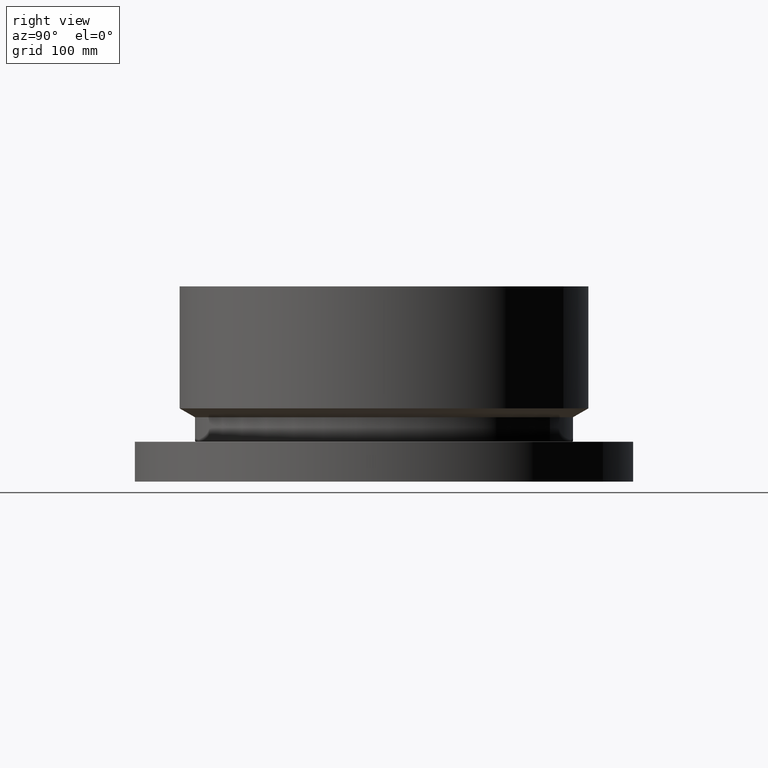
[diagram: clean part render]
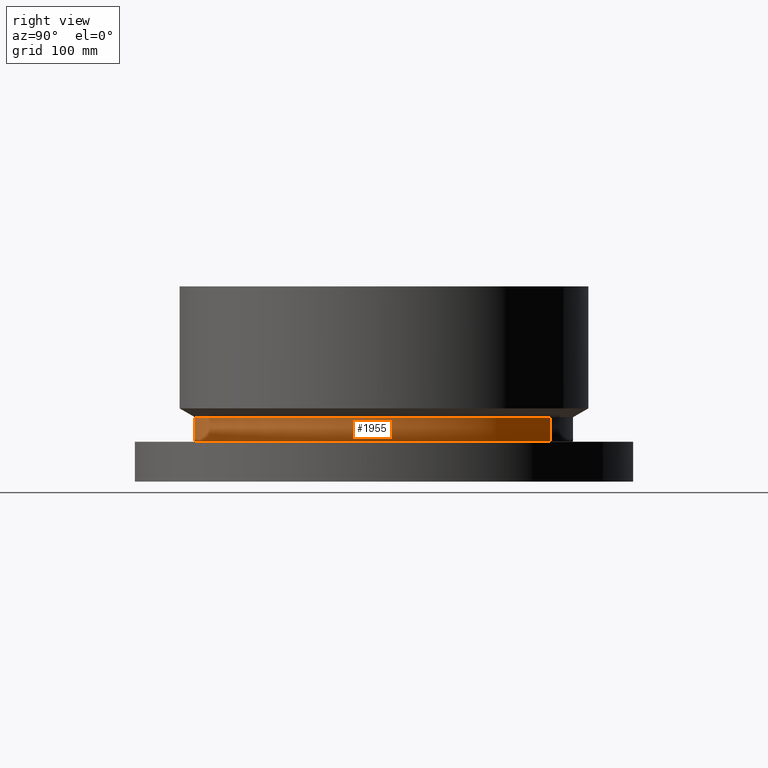
[diagram: same view with one face highlighted and labeled with its STEP entity id]
A machine part, right view. The second image highlights one B-rep face of the part: STEP entity #1955.
In plain terms, the highlighted cylindrical surface (partial cylindrical patch) has radius 293.624 mm, axis along (0, 0, -1).
Its self-contained STEP definition (entity closure, byte-faithful):
#1717=AXIS2_PLACEMENT_3D('Circle Axis2P3D',#1715,#1716,$) ;
#1928=AXIS2_PLACEMENT_3D('Cylinder Axis2P3D',#1925,#1926,#1927) ;
#1939=AXIS2_PLACEMENT_3D('Circle Axis2P3D',#1937,#1938,$) ;
#1712=CARTESIAN_POINT('Vertex',(5.54215922629,10.1448544155,2.47848076212)) ;
#1715=CARTESIAN_POINT('Axis2P3D Location',(0.,0.,2.47848076212)) ;
#1719=CARTESIAN_POINT('Vertex',(-5.54215922629,-10.1448544155,2.47848076212)) ;
#1925=CARTESIAN_POINT('Axis2P3D Location',(0.,0.,5.93750000002)) ;
#1930=CARTESIAN_POINT('Line Origine',(5.54215922629,10.1448544155,3.20799038107)) ;
#1934=CARTESIAN_POINT('Vertex',(5.54215922629,10.1448544155,3.93750000002)) ;
#1937=CARTESIAN_POINT('Axis2P3D Location',(0.,0.,3.93750000002)) ;
#1941=CARTESIAN_POINT('Vertex',(-5.54215922629,-10.1448544155,3.93750000002)) ;
#1944=CARTESIAN_POINT('Line Origine',(-5.54215922629,-10.1448544155,3.20799038107)) ;
#1716=DIRECTION('Axis2P3D Direction',(-0.,0.,0.0393700787402)) ;
#1926=DIRECTION('Axis2P3D Direction',(0.,0.,-0.0393700787402)) ;
#1927=DIRECTION('Axis2P3D XDirection',(-0.0188750212049,-0.0345504945626,0.)) ;
#1931=DIRECTION('Vector Direction',(0.,0.,-0.0393700787402)) ;
#1938=DIRECTION('Axis2P3D Direction',(0.,0.,-0.0393700787402)) ;
#1945=DIRECTION('Vector Direction',(0.,0.,-0.0393700787402)) ;
#1932=VECTOR('Line Direction',#1931,0.0393700787402) ;
#1946=VECTOR('Line Direction',#1945,0.0393700787402) ;
#1950=ORIENTED_EDGE('',*,*,#1721,.F.) ;
#1951=ORIENTED_EDGE('',*,*,#1936,.T.) ;
#1952=ORIENTED_EDGE('',*,*,#1943,.T.) ;
#1953=ORIENTED_EDGE('',*,*,#1948,.F.) ;
#1955=ADVANCED_FACE('PartBody',(#1954),#1929,.T.) ;
#1718=CIRCLE('generated circle',#1717,11.56) ;
#1940=CIRCLE('generated circle',#1939,11.56) ;
#1929=CYLINDRICAL_SURFACE('generated cylinder',#1928,11.56) ;
#1721=EDGE_CURVE('',#1713,#1720,#1718,.F.) ;
#1936=EDGE_CURVE('',#1713,#1935,#1933,.F.) ;
#1943=EDGE_CURVE('',#1935,#1942,#1940,.T.) ;
#1948=EDGE_CURVE('',#1720,#1942,#1947,.F.) ;
#1949=EDGE_LOOP('',(#1950,#1951,#1952,#1953)) ;
#1954=FACE_OUTER_BOUND('',#1949,.T.) ;
#1933=LINE('Line',#1930,#1932) ;
#1947=LINE('Line',#1944,#1946) ;
#1713=VERTEX_POINT('',#1712) ;
#1720=VERTEX_POINT('',#1719) ;
#1935=VERTEX_POINT('',#1934) ;
#1942=VERTEX_POINT('',#1941) ;